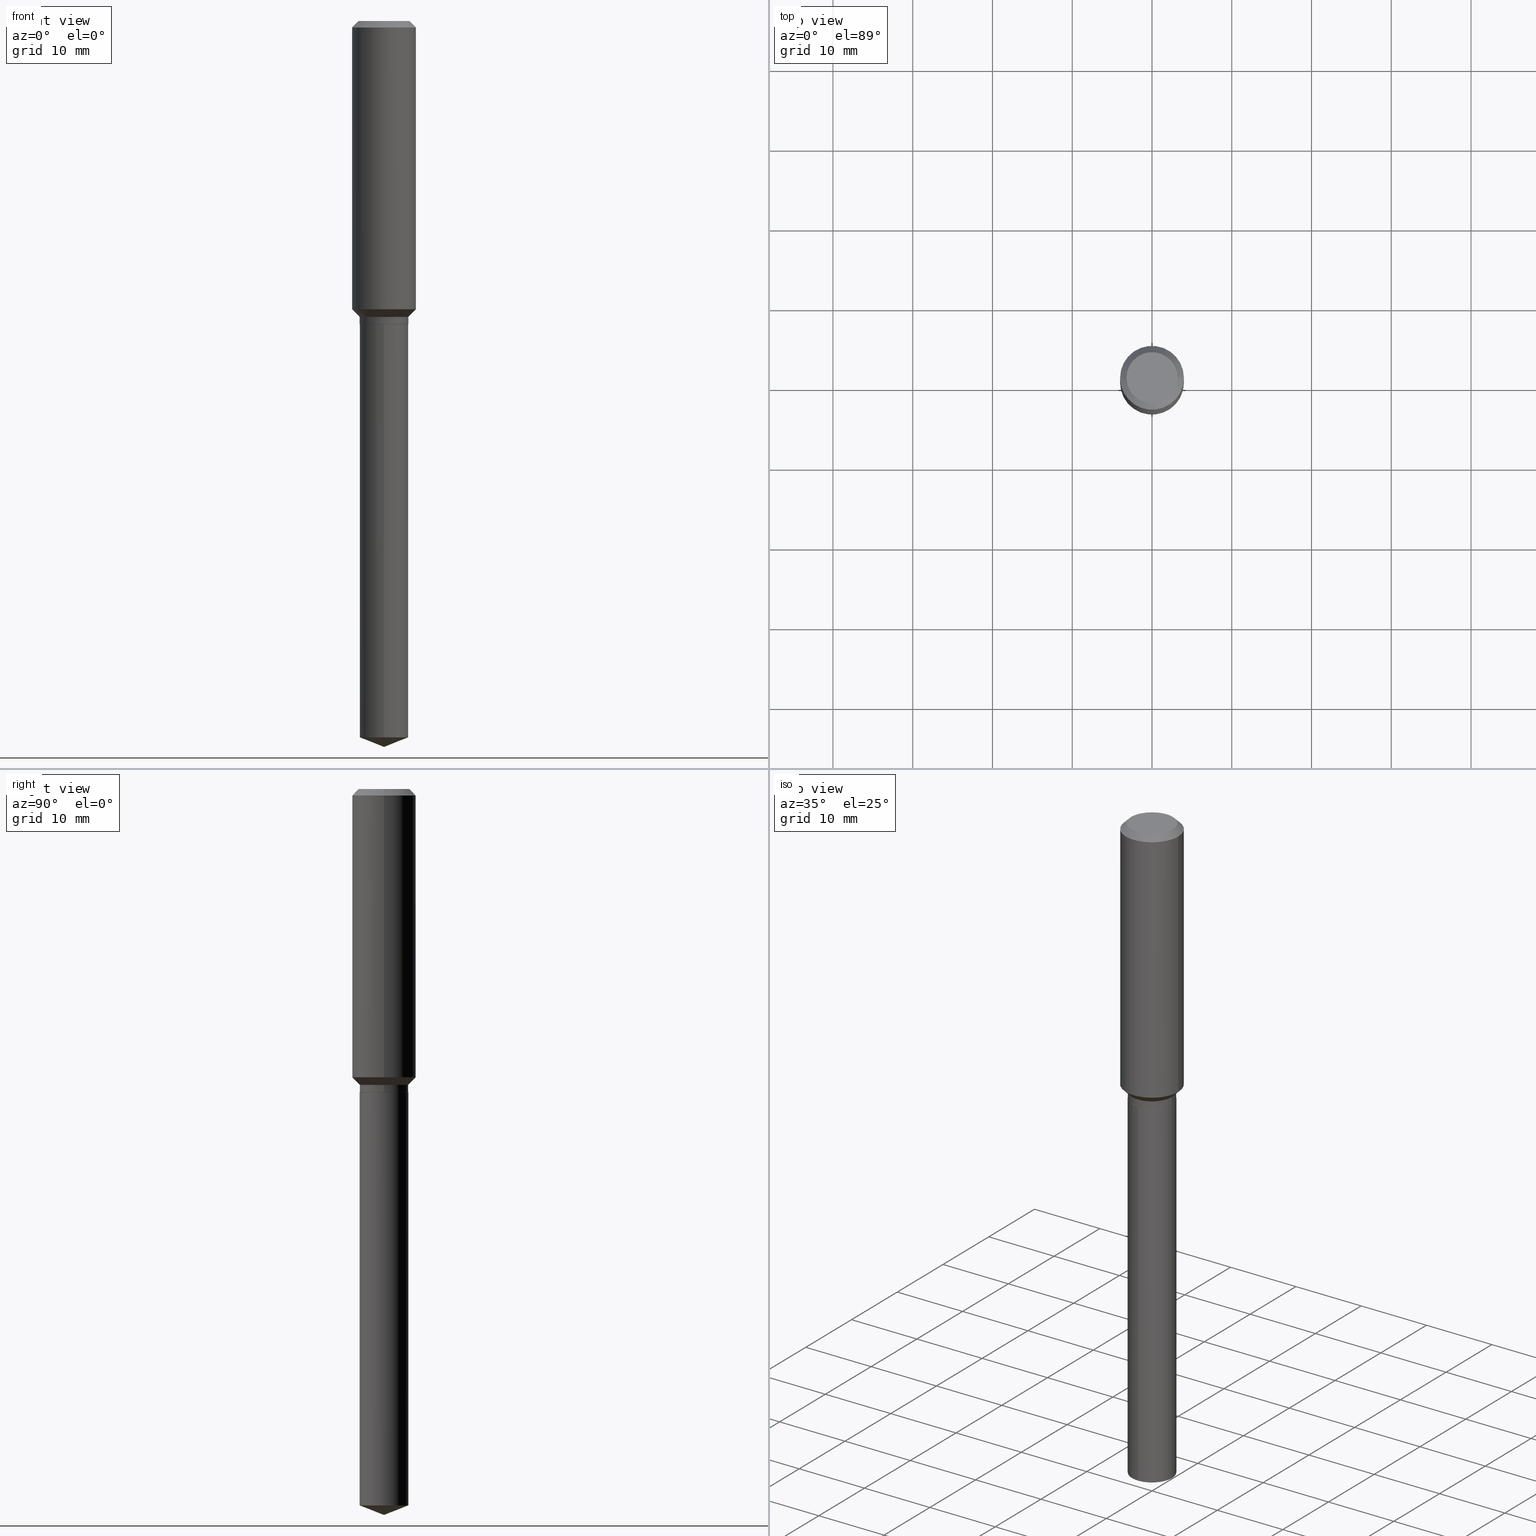
[diagram: canonical four-view strip — front | top / right | iso, engineering-drawing reading convention]
A machine part, canonical four-view strip (front | top / right | iso — engineering-drawing reading convention). The complete STEP part file that produces these views, byte-faithful:
ISO-10303-21;
HEADER;
FILE_DESCRIPTION (( 'STEP AP203' ),
    '1' );
FILE_NAME ('66534.STEP',
    '2024-04-25T00:26:50',
    ( '' ),
    ( '' ),
    'SwSTEP 2.0',
    'SolidWorks 2023',
    '' );
FILE_SCHEMA (( 'CONFIG_CONTROL_DESIGN' ));
ENDSEC;

DATA;
#1 = FACE_OUTER_BOUND ( 'NONE', #41, .T. ) ;
#2 = EDGE_CURVE ( 'NONE', #14, #185, #245, .T. ) ;
#3 = DIRECTION ( 'NONE',  ( 1.000000000000000000, -6.982962677686265922E-15, 0.000000000000000000 ) ) ;
#4 = CARTESIAN_POINT ( 'NONE',  ( 8.761960870846505279E-29, -1.251019797580790401E-14, -3.583000000000000185 ) ) ;
#5 = CARTESIAN_POINT ( 'NONE',  ( 0.000000000000000000, 0.000000000000000000, 0.000000000000000000 ) ) ;
#6 = CARTESIAN_POINT ( 'NONE',  ( 3.659399521575438742E-29, -5.224652675444883351E-15, -1.496400000000000174 ) ) ;
#7 = CIRCLE ( 'NONE', #391, 0.1575000000000001676 ) ;
#8 = PERSON_AND_ORGANIZATION_ROLE ( 'design_supplier' ) ;
#9 = EDGE_LOOP ( 'NONE', ( #446, #57 ) ) ;
#10 = PERSON_AND_ORGANIZATION ( #28, #25 ) ;
#11 = DIRECTION ( 'NONE',  ( -2.445468806185136597E-29, 3.491481338843145583E-15, 1.000000000000000000 ) ) ;
#12 = EDGE_LOOP ( 'NONE', ( #388, #166, #284, #409 ) ) ;
#13 = SECURITY_CLASSIFICATION_LEVEL ( 'unclassified' ) ;
#14 = VERTEX_POINT ( 'NONE', #59 ) ;
#15 = CONICAL_SURFACE ( 'NONE', #439, 0.1575000000000000011, 0.7853981633974450594 ) ;
#16 =( GEOMETRIC_REPRESENTATION_CONTEXT ( 3 ) GLOBAL_UNCERTAINTY_ASSIGNED_CONTEXT ( ( #213 ) ) GLOBAL_UNIT_ASSIGNED_CONTEXT ( ( #305, #257, #65 ) ) REPRESENTATION_CONTEXT ( 'NONE', 'WORKASPACE' ) );
#17 = CIRCLE ( 'NONE', #316, 0.1200999999999999984 ) ;
#18 = ORIENTED_EDGE ( 'NONE', *, *, #454, .T. ) ;
#19 = APPROVAL ( #269, 'UNSPECIFIED' ) ;
#20 = CARTESIAN_POINT ( 'NONE',  ( 7.703226739483226971E-31, -1.099816621735597538E-16, -0.03150000000000019451 ) ) ;
#21 = ORIENTED_EDGE ( 'NONE', *, *, #2, .T. ) ;
#22 = CARTESIAN_POINT ( 'NONE',  ( 7.703226739483226971E-31, -1.099816621735597538E-16, -0.03150000000000019451 ) ) ;
#23 = CARTESIAN_POINT ( 'NONE',  ( -4.719860820353100843E-47, 6.738710358733633822E-33, 1.930043355456229866E-18 ) ) ;
#24 = CIRCLE ( 'NONE', #361, 0.1195999999999999980 ) ;
#25 = ORGANIZATION ( 'UNSPECIFIED', 'UNSPECIFIED', '' ) ;
#26 = CYLINDRICAL_SURFACE ( 'NONE', #152, 0.1575000000000000844 ) ;
#27 = FACE_OUTER_BOUND ( 'NONE', #12, .T. ) ;
#28 = PERSON ( 'UNSPECIFIED', 'UNSPECIFIED', 'UNSPECIFIED', ('UNSPECIFIED'), ('UNSPECIFIED'), ('UNSPECIFIED') ) ;
#29 = CARTESIAN_POINT ( 'NONE',  ( -0.1575000000000000844, 1.119104808822158392E-15, -7.747322767151481189E-30 ) ) ;
#30 = ORIENTED_EDGE ( 'NONE', *, *, #129, .F. ) ;
#31 = DESIGN_CONTEXT ( 'detailed design', #58, 'design' ) ;
#32 = FACE_OUTER_BOUND ( 'NONE', #331, .T. ) ;
#33 = PRODUCT_DEFINITION ( 'UNKNOWN', '', #113, #31 ) ;
#34 = DIRECTION ( 'NONE',  ( -2.445468806185136597E-29, 3.491481338843145583E-15, 1.000000000000000000 ) ) ;
#35 = APPLICATION_PROTOCOL_DEFINITION ( 'international standard', 'config_control_design', 1994, #398 ) ;
#36 = EDGE_CURVE ( 'NONE', #471, #55, #207, .T. ) ;
#37 = CARTESIAN_POINT ( 'NONE',  ( 3.478923923678974203E-29, -4.966981352638257591E-15, -1.422599999999999643 ) ) ;
#38 = CYLINDRICAL_SURFACE ( 'NONE', #244, 0.1200999999999999984 ) ;
#39 = DIRECTION ( 'NONE',  ( 1.000000000000000000, -6.982962677686267499E-15, 0.000000000000000000 ) ) ;
#40 = AXIS2_PLACEMENT_3D ( 'NONE', #223, #180, #332 ) ;
#41 = EDGE_LOOP ( 'NONE', ( #163, #92, #469, #89 ) ) ;
#42 = VECTOR ( 'NONE', #145, 39.37007874015748143 ) ;
#43 = DIRECTION ( 'NONE',  ( -2.445425864037539637E-29, 3.491542834442619495E-15, 1.000000000000000000 ) ) ;
#44 = FACE_OUTER_BOUND ( 'NONE', #197, .T. ) ;
#45 = VERTEX_POINT ( 'NONE', #403 ) ;
#46 = APPROVAL_ROLE ( '' ) ;
#47 = AXIS2_PLACEMENT_3D ( 'NONE', #177, #140, #135 ) ;
#48 = ORIENTED_EDGE ( 'NONE', *, *, #454, .F. ) ;
#49 = CIRCLE ( 'NONE', #175, 0.1200999999999999984 ) ;
#50 = ORIENTED_EDGE ( 'NONE', *, *, #187, .F. ) ;
#51 = VERTEX_POINT ( 'NONE', #433 ) ;
#52 = COORDINATED_UNIVERSAL_TIME_OFFSET ( 5, 0, .BEHIND. ) ;
#53 = VERTEX_POINT ( 'NONE', #325 ) ;
#54 = APPROVAL_STATUS ( 'not_yet_approved' ) ;
#55 = VERTEX_POINT ( 'NONE', #94 ) ;
#56 = VECTOR ( 'NONE', #61, 39.37007874015748143 ) ;
#57 = ORIENTED_EDGE ( 'NONE', *, *, #196, .F. ) ;
#58 = APPLICATION_CONTEXT ( 'configuration controlled 3d designs of mechanical parts and assemblies' ) ;
#59 = CARTESIAN_POINT ( 'NONE',  ( 0.1200999999999999984, -6.061560752365582927E-15, -1.495900000000000230 ) ) ;
#60 = DIRECTION ( 'NONE',  ( -2.445468806185136597E-29, 3.491481338843145583E-15, 1.000000000000000000 ) ) ;
#61 = DIRECTION ( 'NONE',  ( -2.445425864037539356E-29, 3.491542834442619101E-15, 1.000000000000000000 ) ) ;
#62 = LINE ( 'NONE', #29, #143 ) ;
#63 = FACE_OUTER_BOUND ( 'NONE', #317, .T. ) ;
#64 = CC_DESIGN_PERSON_AND_ORGANIZATION_ASSIGNMENT ( #426, #122, ( #113 ) ) ;
#65 =( NAMED_UNIT ( * ) SI_UNIT ( $, .STERADIAN. ) SOLID_ANGLE_UNIT ( ) );
#66 = VECTOR ( 'NONE', #301, 39.37007874015748143 ) ;
#67 = LOCAL_TIME ( 20, 26, 50.00000000000000000, #282 ) ;
#68 = DIRECTION ( 'NONE',  ( -2.445425864037539637E-29, 3.491542834442619495E-15, 1.000000000000000000 ) ) ;
#69 = DIRECTION ( 'NONE',  ( 0.000000000000000000, 0.000000000000000000, 1.000000000000000000 ) ) ;
#70 = DIRECTION ( 'NONE',  ( -2.445468806185136597E-29, 3.491481338843145583E-15, 1.000000000000000000 ) ) ;
#71 = ORIENTED_EDGE ( 'NONE', *, *, #358, .T. ) ;
#72 = EDGE_CURVE ( 'NONE', #319, #432, #260, .T. ) ;
#73 = DIRECTION ( 'NONE',  ( 1.000000000000000000, -6.982962677686267499E-15, 4.876176775795936353E-29 ) ) ;
#74 = CARTESIAN_POINT ( 'NONE',  ( -0.1200999999999999984, -4.306873019095346106E-15, -1.459999999999999742 ) ) ;
#75 = DIRECTION ( 'NONE',  ( -2.445468806185136597E-29, 3.491481338843145583E-15, 1.000000000000000000 ) ) ;
#76 = AXIS2_PLACEMENT_3D ( 'NONE', #458, #220, #376 ) ;
#77 = DIRECTION ( 'NONE',  ( -2.445468806185136597E-29, 3.491481338843145583E-15, 1.000000000000000000 ) ) ;
#78 = DIRECTION ( 'NONE',  ( -0.7071067811866199593, 7.493145998870616062E-15, 0.7071067811864750752 ) ) ;
#79 = DATE_AND_TIME ( #124, #466 ) ;
#80 = DIRECTION ( 'NONE',  ( -2.445468806185136597E-29, 3.491481338843145583E-15, 1.000000000000000000 ) ) ;
#81 = ADVANCED_FACE ( 'NONE', ( #63 ), #253, .T. ) ;
#82 = ORIENTED_EDGE ( 'NONE', *, *, #134, .T. ) ;
#83 = CIRCLE ( 'NONE', #120, 0.1575000000000000011 ) ;
#84 = ORIENTED_EDGE ( 'NONE', *, *, #400, .F. ) ;
#85 = APPROVAL_DATE_TIME ( #348, #335 ) ;
#86 = CARTESIAN_POINT ( 'NONE',  ( -8.386538175900839049E-16, -0.1201000000000052303, -1.496399999999999730 ) ) ;
#87 = ORIENTED_EDGE ( 'NONE', *, *, #445, .T. ) ;
#88 = COORDINATED_UNIVERSAL_TIME_OFFSET ( 5, 0, .BEHIND. ) ;
#89 = ORIENTED_EDGE ( 'NONE', *, *, #445, .F. ) ;
#90 = VECTOR ( 'NONE', #291, 39.37007874015748143 ) ;
#91 = ORIENTED_EDGE ( 'NONE', *, *, #358, .F. ) ;
#92 = ORIENTED_EDGE ( 'NONE', *, *, #196, .T. ) ;
#93 = ORIENTED_EDGE ( 'NONE', *, *, #2, .F. ) ;
#94 = CARTESIAN_POINT ( 'NONE',  ( -0.1575000000000001676, -3.847876543816099199E-15, -1.422599999999999643 ) ) ;
#95 = CARTESIAN_POINT ( 'NONE',  ( 0.1575000000000000844, -1.099816621735587677E-15, 7.679978421878603638E-30 ) ) ;
#96 = CIRCLE ( 'NONE', #415, 0.1260000000000000009 ) ;
#97 = DIRECTION ( 'NONE',  ( -6.982962677686265922E-15, -1.000000000000000000, 3.498627837350062993E-15 ) ) ;
#98 = EDGE_CURVE ( 'NONE', #464, #174, #247, .T. ) ;
#99 = CARTESIAN_POINT ( 'NONE',  ( 0.1195999999999999980, -6.059815011696161424E-15, -1.496400000000000174 ) ) ;
#100 = DIRECTION ( 'NONE',  ( 1.000000000000000000, -6.982962677686265922E-15, 0.000000000000000000 ) ) ;
#101 = DIRECTION ( 'NONE',  ( -1.000000000000000000, 6.982962677686265922E-15, -4.876176775795935793E-29 ) ) ;
#102 = AXIS2_PLACEMENT_3D ( 'NONE', #144, #304, #265 ) ;
#103 = CARTESIAN_POINT ( 'NONE',  ( 3.570384457030299274E-29, -5.097562754710991580E-15, -1.459999999999999742 ) ) ;
#104 = ORIENTED_EDGE ( 'NONE', *, *, #72, .T. ) ;
#105 = CARTESIAN_POINT ( 'NONE',  ( 3.570384457030299274E-29, -5.097562754710991580E-15, -1.459999999999999742 ) ) ;
#106 = DIRECTION ( 'NONE',  ( 1.000000000000000000, -6.982962677686269866E-15, 0.000000000000000000 ) ) ;
#107 = MECHANICAL_CONTEXT ( 'NONE', #398, 'mechanical' ) ;
#108 = LINE ( 'NONE', #307, #66 ) ;
#109 = PERSON_AND_ORGANIZATION ( #28, #25 ) ;
#110 = CARTESIAN_POINT ( 'NONE',  ( -0.1195999999999999980, -4.374843563475804036E-15, -1.496400000000000174 ) ) ;
#111 = VECTOR ( 'NONE', #141, 39.37007874015748143 ) ;
#112 = ADVANCED_FACE ( 'NONE', ( #397 ), #194, .T. ) ;
#113 = PRODUCT_DEFINITION_FORMATION_WITH_SPECIFIED_SOURCE ( 'ANY', '', #237, .NOT_KNOWN. ) ;
#114 = LINE ( 'NONE', #110, #385 ) ;
#115 = DIRECTION ( 'NONE',  ( 1.000000000000000000, -6.982962677686265922E-15, 0.000000000000000000 ) ) ;
#116 = ORIENTED_EDGE ( 'NONE', *, *, #129, .T. ) ;
#117 = ADVANCED_FACE ( 'NONE', ( #327 ), #202, .T. ) ;
#118 = VECTOR ( 'NONE', #463, 39.37007874015748143 ) ;
#119 = ORIENTED_EDGE ( 'NONE', *, *, #98, .T. ) ;
#120 = AXIS2_PLACEMENT_3D ( 'NONE', #267, #75, #452 ) ;
#121 = CONICAL_SURFACE ( 'NONE', #303, 0.1575000000000000011, 0.7853981633974450594 ) ;
#122 = PERSON_AND_ORGANIZATION_ROLE ( 'creator' ) ;
#123 = VERTEX_POINT ( 'NONE', #442 ) ;
#124 = CALENDAR_DATE ( 2024, 24, 4 ) ;
#125 = ORIENTED_EDGE ( 'NONE', *, *, #167, .F. ) ;
#126 = ORIENTED_EDGE ( 'NONE', *, *, #186, .F. ) ;
#127 = DIRECTION ( 'NONE',  ( 1.000000000000000000, -6.982962677686265922E-15, 0.000000000000000000 ) ) ;
#128 = ORIENTED_EDGE ( 'NONE', *, *, #72, .F. ) ;
#129 = EDGE_CURVE ( 'NONE', #123, #51, #49, .T. ) ;
#130 = AXIS2_PLACEMENT_3D ( 'NONE', #444, #359, #362 ) ;
#131 = DIRECTION ( 'NONE',  ( 2.445468806185136597E-29, -3.491481338843145583E-15, -1.000000000000000000 ) ) ;
#132 = PLANE ( 'NONE',  #225 ) ;
#133 = EDGE_CURVE ( 'NONE', #467, #14, #473, .T. ) ;
#134 = EDGE_CURVE ( 'NONE', #51, #123, #315, .T. ) ;
#135 = DIRECTION ( 'NONE',  ( -6.982962677686265922E-15, -1.000000000000000000, 4.549288915344318469E-15 ) ) ;
#136 = ADVANCED_FACE ( 'NONE', ( #258 ), #26, .T. ) ;
#137 = AXIS2_PLACEMENT_3D ( 'NONE', #172, #360, #252 ) ;
#138 = CARTESIAN_POINT ( 'NONE',  ( 0.1575000000000000011, -1.209798283909146741E-15, -0.03150000000000019451 ) ) ;
#139 = ORIENTED_EDGE ( 'NONE', *, *, #167, .T. ) ;
#140 = DIRECTION ( 'NONE',  ( -2.445425864037539637E-29, 3.491542834442619495E-15, 1.000000000000000000 ) ) ;
#141 = DIRECTION ( 'NONE',  ( -2.445468806185136877E-29, 3.491481338843145188E-15, 1.000000000000000000 ) ) ;
#142 = CARTESIAN_POINT ( 'NONE',  ( 3.658176787172346501E-29, -5.222906934775461847E-15, -1.495900000000000230 ) ) ;
#143 = VECTOR ( 'NONE', #173, 39.37007874015748143 ) ;
#144 = CARTESIAN_POINT ( 'NONE',  ( 3.659399521575438742E-29, -5.224652675444883351E-15, -1.496400000000000174 ) ) ;
#145 = DIRECTION ( 'NONE',  ( 0.7071067811865491270, -2.468850131082274021E-15, 0.7071067811865459074 ) ) ;
#146 = DIRECTION ( 'NONE',  ( 1.000000000000000000, -6.982962677686265922E-15, 0.000000000000000000 ) ) ;
#147 = DIRECTION ( 'NONE',  ( -6.982962677686265922E-15, -1.000000000000000000, 4.549288915344318469E-15 ) ) ;
#148 = EDGE_LOOP ( 'NONE', ( #82, #116 ) ) ;
#149 = ADVANCED_FACE ( 'NONE', ( #32 ), #132, .F. ) ;
#150 = DATE_AND_TIME ( #192, #67 ) ;
#151 = LINE ( 'NONE', #339, #278 ) ;
#152 = AXIS2_PLACEMENT_3D ( 'NONE', #170, #168, #474 ) ;
#153 = CALENDAR_DATE ( 2024, 24, 4 ) ;
#154 = ORIENTED_EDGE ( 'NONE', *, *, #414, .T. ) ;
#155 = ORIENTED_EDGE ( 'NONE', *, *, #274, .F. ) ;
#156 = SHAPE_DEFINITION_REPRESENTATION ( #355, #437 ) ;
#157 = ORIENTED_EDGE ( 'NONE', *, *, #341, .T. ) ;
#158 = ADVANCED_FACE ( 'NONE', ( #27 ), #15, .T. ) ;
#159 = PERSON_AND_ORGANIZATION ( #28, #25 ) ;
#160 = CARTESIAN_POINT ( 'NONE',  ( 3.570384457030299274E-29, -5.097562754710991580E-15, -1.459999999999999742 ) ) ;
#161 = ORIENTED_EDGE ( 'NONE', *, *, #318, .T. ) ;
#162 = AXIS2_PLACEMENT_3D ( 'NONE', #300, #69, #375 ) ;
#163 = ORIENTED_EDGE ( 'NONE', *, *, #350, .F. ) ;
#164 = ADVANCED_FACE ( 'NONE', ( #210 ), #401, .F. ) ;
#165 = EDGE_LOOP ( 'NONE', ( #236, #423, #421, #155 ) ) ;
#166 = ORIENTED_EDGE ( 'NONE', *, *, #187, .T. ) ;
#167 = EDGE_CURVE ( 'NONE', #55, #249, #62, .T. ) ;
#168 = DIRECTION ( 'NONE',  ( -2.445468806185136597E-29, 3.491481338843145583E-15, 1.000000000000000000 ) ) ;
#169 = CONICAL_SURFACE ( 'NONE', #372, 0.1200999999999999984, 0.7853981633974506105 ) ;
#170 = CARTESIAN_POINT ( 'NONE',  ( 0.000000000000000000, 0.000000000000000000, 0.000000000000000000 ) ) ;
#171 = DIRECTION ( 'NONE',  ( 6.982962677686265922E-15, 1.000000000000000000, -3.491542834442619101E-15 ) ) ;
#172 = CARTESIAN_POINT ( 'NONE',  ( -9.439721640706201686E-47, 1.347742071746726764E-32, 3.860086710912459732E-18 ) ) ;
#173 = DIRECTION ( 'NONE',  ( -2.445468806185136877E-29, 3.491481338843145188E-15, 1.000000000000000000 ) ) ;
#174 = VERTEX_POINT ( 'NONE', #138 ) ;
#175 = AXIS2_PLACEMENT_3D ( 'NONE', #405, #68, #364 ) ;
#176 = CC_DESIGN_SECURITY_CLASSIFICATION ( #235, ( #113 ) ) ;
#177 = CARTESIAN_POINT ( 'NONE',  ( 8.646335337767556981E-29, -1.234492578243756992E-14, -3.535691351878645250 ) ) ;
#178 = CC_DESIGN_DATE_AND_TIME_ASSIGNMENT ( #150, #424, ( #33 ) ) ;
#179 = EDGE_CURVE ( 'NONE', #45, #471, #296, .T. ) ;
#180 = DIRECTION ( 'NONE',  ( -2.445468806185136597E-29, 3.491481338843145583E-15, 1.000000000000000000 ) ) ;
#181 = LINE ( 'NONE', #455, #343 ) ;
#182 = LINE ( 'NONE', #229, #42 ) ;
#183 = CIRCLE ( 'NONE', #472, 0.1200999999999999984 ) ;
#184 = CARTESIAN_POINT ( 'NONE',  ( 3.570384457030299274E-29, -5.097562754710991580E-15, -1.459999999999999742 ) ) ;
#185 = VERTEX_POINT ( 'NONE', #273 ) ;
#186 = EDGE_CURVE ( 'NONE', #464, #55, #7, .T. ) ;
#187 = EDGE_CURVE ( 'NONE', #387, #174, #337, .T. ) ;
#188 = PERSON_AND_ORGANIZATION_ROLE ( 'design_owner' ) ;
#189 = CARTESIAN_POINT ( 'NONE',  ( -0.1575000000000000011, -1.419376698583750132E-15, -0.03150000000000019451 ) ) ;
#190 = DIRECTION ( 'NONE',  ( -2.445425864037539637E-29, 3.491542834442619495E-15, 1.000000000000000000 ) ) ;
#191 = ORIENTED_EDGE ( 'NONE', *, *, #241, .T. ) ;
#192 = CALENDAR_DATE ( 2024, 24, 4 ) ;
#193 = CLOSED_SHELL ( 'NONE', ( #289, #158, #136, #369, #434, #81, #256, #217, #394, #149, #420, #243 ) ) ;
#194 = CONICAL_SURFACE ( 'NONE', #336, 99.94676754583829847, 1.195550537616113740 ) ;
#195 = ORIENTED_EDGE ( 'NONE', *, *, #302, .F. ) ;
#196 = EDGE_CURVE ( 'NONE', #427, #467, #250, .T. ) ;
#197 = EDGE_LOOP ( 'NONE', ( #125, #456, #119, #195 ) ) ;
#198 = APPROVAL_DATE_TIME ( #280, #344 ) ;
#199 = EDGE_LOOP ( 'NONE', ( #275, #425, #279 ) ) ;
#200 = DATE_TIME_ROLE ( 'classification_date' ) ;
#201 = DIRECTION ( 'NONE',  ( -2.445468806185136597E-29, 3.491481338843145583E-15, 1.000000000000000000 ) ) ;
#202 = CONICAL_SURFACE ( 'NONE', #479, 99.94676754583829847, 1.195550537616113740 ) ;
#203 = ORIENTED_EDGE ( 'NONE', *, *, #179, .T. ) ;
#204 = APPROVAL_PERSON_ORGANIZATION ( #383, #344, #46 ) ;
#205 = APPROVAL_DATE_TIME ( #79, #19 ) ;
#206 = ORIENTED_EDGE ( 'NONE', *, *, #186, .T. ) ;
#207 = LINE ( 'NONE', #313, #118 ) ;
#208 = AXIS2_PLACEMENT_3D ( 'NONE', #20, #201, #127 ) ;
#209 = FACE_OUTER_BOUND ( 'NONE', #9, .T. ) ;
#210 = FACE_OUTER_BOUND ( 'NONE', #148, .T. ) ;
#211 = ORIENTED_EDGE ( 'NONE', *, *, #222, .F. ) ;
#212 = CARTESIAN_POINT ( 'NONE',  ( 0.1260000000000000009, -1.027466422270894443E-15, 3.860086710919128072E-18 ) ) ;
#213 = UNCERTAINTY_MEASURE_WITH_UNIT (LENGTH_MEASURE( 1.000000000000000082E-05 ), #305, 'distance_accuracy_value', 'NONE');
#214 = DIRECTION ( 'NONE',  ( -2.445425864037539637E-29, 3.491542834442619495E-15, 1.000000000000000000 ) ) ;
#215 = CC_DESIGN_PERSON_AND_ORGANIZATION_ASSIGNMENT ( #10, #8, ( #113 ) ) ;
#216 = CIRCLE ( 'NONE', #76, 0.1575000000000001676 ) ;
#217 = ADVANCED_FACE ( 'NONE', ( #44 ), #378, .T. ) ;
#218 =( LENGTH_UNIT ( ) NAMED_UNIT ( * ) SI_UNIT ( $, .METRE. ) );
#219 = DIRECTION ( 'NONE',  ( 1.000000000000000000, -6.982962677686269866E-15, 0.000000000000000000 ) ) ;
#220 = DIRECTION ( 'NONE',  ( -2.445468806185136597E-29, 3.491481338843145583E-15, 1.000000000000000000 ) ) ;
#221 = LENGTH_MEASURE_WITH_UNIT ( LENGTH_MEASURE( 0.02539999999999999897 ), #218 );
#222 = EDGE_CURVE ( 'NONE', #14, #45, #226, .T. ) ;
#223 = CARTESIAN_POINT ( 'NONE',  ( 3.658176787172346501E-29, -5.222906934775461847E-15, -1.495900000000000230 ) ) ;
#224 = VECTOR ( 'NONE', #395, 39.37007874015748143 ) ;
#225 = AXIS2_PLACEMENT_3D ( 'NONE', #23, #435, #101 ) ;
#226 = CIRCLE ( 'NONE', #40, 0.1200999999999999984 ) ;
#227 = AXIS2_PLACEMENT_3D ( 'NONE', #105, #412, #3 ) ;
#228 = CARTESIAN_POINT ( 'NONE',  ( -8.386538175900343053E-16, -0.1201000000000123774, -3.535691351878644362 ) ) ;
#229 = CARTESIAN_POINT ( 'NONE',  ( 0.1200999999999999984, -5.936216572301112660E-15, -1.459999999999999742 ) ) ;
#230 = DIRECTION ( 'NONE',  ( -2.445468806185136597E-29, 3.491481338843145583E-15, 1.000000000000000000 ) ) ;
#231 = PERSON_AND_ORGANIZATION_ROLE ( 'creator' ) ;
#232 = EDGE_CURVE ( 'NONE', #471, #185, #286, .T. ) ;
#233 = PERSON_AND_ORGANIZATION ( #28, #25 ) ;
#234 = VECTOR ( 'NONE', #349, 39.37007874015748143 ) ;
#235 = SECURITY_CLASSIFICATION ( '', '', #13 ) ;
#236 = ORIENTED_EDGE ( 'NONE', *, *, #36, .F. ) ;
#237 = PRODUCT ( '66534', '66534', '', ( #107 ) ) ;
#238 = ORIENTED_EDGE ( 'NONE', *, *, #453, .T. ) ;
#239 = DIMENSIONAL_EXPONENTS ( 1.000000000000000000, 0.000000000000000000, 0.000000000000000000, 0.000000000000000000, 0.000000000000000000, 0.000000000000000000, 0.000000000000000000 ) ;
#240 = EDGE_LOOP ( 'NONE', ( #299, #157, #71, #30 ) ) ;
#241 = EDGE_CURVE ( 'NONE', #326, #432, #108, .T. ) ;
#242 = ORIENTED_EDGE ( 'NONE', *, *, #302, .T. ) ;
#243 = ADVANCED_FACE ( 'NONE', ( #1 ), #308, .T. ) ;
#244 = AXIS2_PLACEMENT_3D ( 'NONE', #340, #443, #410 ) ;
#245 = LINE ( 'NONE', #287, #224 ) ;
#246 = EDGE_LOOP ( 'NONE', ( #351, #191, #128 ) ) ;
#247 = LINE ( 'NONE', #95, #90 ) ;
#248 = CARTESIAN_POINT ( 'NONE',  ( 7.703226739483226971E-31, -1.099816621735597538E-16, -0.03150000000000019451 ) ) ;
#249 = VERTEX_POINT ( 'NONE', #189 ) ;
#250 = CIRCLE ( 'NONE', #294, 0.1195999999999999980 ) ;
#251 = AXIS2_PLACEMENT_3D ( 'NONE', #5, #77, #407 ) ;
#252 = DIRECTION ( 'NONE',  ( 1.000000000000000000, -6.982962677686265922E-15, 4.876281427513067258E-29 ) ) ;
#253 = CYLINDRICAL_SURFACE ( 'NONE', #384, 0.1200999999999999984 ) ;
#254 = DIRECTION ( 'NONE',  ( -2.438088387897960049E-29, 3.491481338843145188E-15, 1.000000000000000000 ) ) ;
#255 = CARTESIAN_POINT ( 'NONE',  ( -0.1200999999999999984, 8.533618256478803120E-16, -5.907641043396141944E-30 ) ) ;
#256 = ADVANCED_FACE ( 'NONE', ( #413 ), #322, .T. ) ;
#257 =( NAMED_UNIT ( * ) PLANE_ANGLE_UNIT ( ) SI_UNIT ( $, .RADIAN. ) );
#258 = FACE_OUTER_BOUND ( 'NONE', #430, .T. ) ;
#259 = PRODUCT_RELATED_PRODUCT_CATEGORY ( 'detail', '', ( #237 ) ) ;
#260 = CIRCLE ( 'NONE', #47, 0.1200999999999999984 ) ;
#261 = CONICAL_SURFACE ( 'NONE', #102, 0.1195999999999999980, 0.7853981633975507526 ) ;
#262 = CARTESIAN_POINT ( 'NONE',  ( 0.1195999999999999980, -6.059815011696161424E-15, -1.496400000000000174 ) ) ;
#263 = DIRECTION ( 'NONE',  ( -2.445468806185136597E-29, 3.491481338843145583E-15, 1.000000000000000000 ) ) ;
#264 = EDGE_LOOP ( 'NONE', ( #450, #203, #48, #93 ) ) ;
#265 = DIRECTION ( 'NONE',  ( 1.000000000000000000, -6.982962677686269866E-15, 0.000000000000000000 ) ) ;
#266 = ADVANCED_FACE ( 'NONE', ( #306 ), #408, .T. ) ;
#267 = CARTESIAN_POINT ( 'NONE',  ( 7.703226739483226971E-31, -1.099816621735597538E-16, -0.03150000000000019451 ) ) ;
#268 = VECTOR ( 'NONE', #328, 39.37007874015748143 ) ;
#269 = APPROVAL_STATUS ( 'not_yet_approved' ) ;
#270 = CIRCLE ( 'NONE', #137, 0.1260000000000000009 ) ;
#271 = DIRECTION ( 'NONE',  ( -0.7071067811865452413, 2.468850131082233000E-15, -0.7071067811865497932 ) ) ;
#272 = PERSON_AND_ORGANIZATION ( #28, #25 ) ;
#273 = CARTESIAN_POINT ( 'NONE',  ( 0.1200999999999999984, -5.936216572301112660E-15, -1.459999999999999742 ) ) ;
#274 = EDGE_CURVE ( 'NONE', #55, #464, #216, .T. ) ;
#275 = ORIENTED_EDGE ( 'NONE', *, *, #241, .F. ) ;
#276 = PERSON_AND_ORGANIZATION_ROLE ( 'classification_officer' ) ;
#277 = DIRECTION ( 'NONE',  ( 1.000000000000000000, -6.982962677686269866E-15, 0.000000000000000000 ) ) ;
#278 = VECTOR ( 'NONE', #271, 39.37007874015748143 ) ;
#279 = ORIENTED_EDGE ( 'NONE', *, *, #341, .F. ) ;
#280 = DATE_AND_TIME ( #312, #480 ) ;
#281 = EDGE_CURVE ( 'NONE', #326, #319, #181, .T. ) ;
#282 = COORDINATED_UNIVERSAL_TIME_OFFSET ( 5, 0, .BEHIND. ) ;
#283 = CC_DESIGN_PERSON_AND_ORGANIZATION_ASSIGNMENT ( #333, #188, ( #237 ) ) ;
#284 = ORIENTED_EDGE ( 'NONE', *, *, #366, .T. ) ;
#285 = CLOSED_SHELL ( 'NONE', ( #266, #117, #112, #482, #164 ) ) ;
#286 = CIRCLE ( 'NONE', #379, 0.1200999999999999984 ) ;
#287 = CARTESIAN_POINT ( 'NONE',  ( 0.1200999999999999984, -8.386538175901206856E-16, 5.856288307730919352E-30 ) ) ;
#288 = DIRECTION ( 'NONE',  ( 2.445425864037539637E-29, -3.491542834442619101E-15, -1.000000000000000000 ) ) ;
#289 = ADVANCED_FACE ( 'NONE', ( #488 ), #261, .T. ) ;
#290 = MANIFOLD_SOLID_BREP ( 'Body-Move/Copy2[2]', #193 ) ;
#291 = DIRECTION ( 'NONE',  ( -2.445468806185136877E-29, 3.491481338843145188E-15, 1.000000000000000000 ) ) ;
#292 = EDGE_LOOP ( 'NONE', ( #402, #352, #211, #354 ) ) ;
#293 = DIRECTION ( 'NONE',  ( 1.000000000000000000, -6.982962677686267499E-15, 4.876176775795936353E-29 ) ) ;
#294 = AXIS2_PLACEMENT_3D ( 'NONE', #419, #70, #219 ) ;
#295 = CC_DESIGN_APPROVAL ( #344, ( #235 ) ) ;
#296 = LINE ( 'NONE', #255, #111 ) ;
#297 = DIRECTION ( 'NONE',  ( -2.445468806185136597E-29, 3.491481338843145583E-15, 1.000000000000000000 ) ) ;
#298 = DIRECTION ( 'NONE',  ( -2.445425864037539637E-29, 3.491542834442619495E-15, 1.000000000000000000 ) ) ;
#299 = ORIENTED_EDGE ( 'NONE', *, *, #414, .F. ) ;
#300 = CARTESIAN_POINT ( 'NONE',  ( 0.000000000000000000, 0.000000000000000000, 0.000000000000000000 ) ) ;
#301 = DIRECTION ( 'NONE',  ( 6.611014441532053178E-15, 0.9304175679820250178, 0.3665012267242958588 ) ) ;
#302 = EDGE_CURVE ( 'NONE', #249, #174, #83, .T. ) ;
#303 = AXIS2_PLACEMENT_3D ( 'NONE', #22, #436, #396 ) ;
#304 = DIRECTION ( 'NONE',  ( -2.445468806185136597E-29, 3.491481338843145583E-15, 1.000000000000000000 ) ) ;
#305 =( CONVERSION_BASED_UNIT ( 'INCH', #221 ) LENGTH_UNIT ( ) NAMED_UNIT ( #239 ) );
#306 = FACE_OUTER_BOUND ( 'NONE', #390, .T. ) ;
#307 = CARTESIAN_POINT ( 'NONE',  ( 8.762090515050494278E-29, -1.251001393177779982E-14, -3.583000000000000185 ) ) ;
#308 = CONICAL_SURFACE ( 'NONE', #438, 0.1195999999999999980, 0.7853981633975507526 ) ;
#309 = DATE_AND_TIME ( #153, #346 ) ;
#310 = CC_DESIGN_APPROVAL ( #19, ( #33 ) ) ;
#311 = DIRECTION ( 'NONE',  ( -2.445468806185136597E-29, 3.491481338843145583E-15, 1.000000000000000000 ) ) ;
#312 = CALENDAR_DATE ( 2024, 24, 4 ) ;
#313 = CARTESIAN_POINT ( 'NONE',  ( -0.1200999999999999984, -4.244200929063111367E-15, -1.459999999999999742 ) ) ;
#314 = ORIENTED_EDGE ( 'NONE', *, *, #134, .F. ) ;
#315 = CIRCLE ( 'NONE', #130, 0.1200999999999999984 ) ;
#316 = AXIS2_PLACEMENT_3D ( 'NONE', #142, #297, #100 ) ;
#317 = EDGE_LOOP ( 'NONE', ( #393, #87, #21, #357 ) ) ;
#318 = EDGE_CURVE ( 'NONE', #53, #249, #151, .T. ) ;
#319 = VERTEX_POINT ( 'NONE', #228 ) ;
#320 = EDGE_LOOP ( 'NONE', ( #18, #461, #126, #468 ) ) ;
#321 = ORIENTED_EDGE ( 'NONE', *, *, #366, .F. ) ;
#322 = CONICAL_SURFACE ( 'NONE', #371, 0.1200999999999999984, 0.7853981633974506105 ) ;
#323 = CARTESIAN_POINT ( 'NONE',  ( -8.751458369089940116E-28, 1.249522103628457051E-13, 35.78707874015748303 ) ) ;
#324 = CARTESIAN_POINT ( 'NONE',  ( 8.533618256479168955E-16, 0.1200999999999947804, -1.496400000000000841 ) ) ;
#325 = CARTESIAN_POINT ( 'NONE',  ( -0.1260000000000000009, 9.348441284752484904E-16, 3.860086710906114178E-18 ) ) ;
#326 = VERTEX_POINT ( 'NONE', #4 ) ;
#327 = FACE_OUTER_BOUND ( 'NONE', #246, .T. ) ;
#328 = DIRECTION ( 'NONE',  ( 0.7071067811866199593, -2.468850131083015945E-15, 0.7071067811864750752 ) ) ;
#329 = AXIS2_PLACEMENT_3D ( 'NONE', #478, #254, #487 ) ;
#330 = CC_DESIGN_DATE_AND_TIME_ASSIGNMENT ( #309, #200, ( #235 ) ) ;
#331 = EDGE_LOOP ( 'NONE', ( #377, #238 ) ) ;
#332 = DIRECTION ( 'NONE',  ( 1.000000000000000000, -6.982962677686265922E-15, 0.000000000000000000 ) ) ;
#333 = PERSON_AND_ORGANIZATION ( #28, #25 ) ;
#334 = DIRECTION ( 'NONE',  ( -6.497071151882105637E-15, -0.9304175679820225753, 0.3665012267243024091 ) ) ;
#335 = APPROVAL ( #54, 'UNSPECIFIED' ) ;
#336 = AXIS2_PLACEMENT_3D ( 'NONE', #323, #214, #97 ) ;
#337 = LINE ( 'NONE', #411, #449 ) ;
#338 = CARTESIAN_POINT ( 'NONE',  ( -0.1195999999999999980, -4.372194336301692835E-15, -1.496400000000000174 ) ) ;
#339 = CARTESIAN_POINT ( 'NONE',  ( -0.1575000000000000011, 9.898349595620272334E-16, -0.03150000000000019451 ) ) ;
#340 = CARTESIAN_POINT ( 'NONE',  ( 3.659399521575438742E-29, -5.224652675444883351E-15, -1.496400000000000174 ) ) ;
#341 = EDGE_CURVE ( 'NONE', #432, #319, #183, .T. ) ;
#342 = DIRECTION ( 'NONE',  ( 0.7071067811865452413, -7.319954787623248157E-15, -0.7071067811865497932 ) ) ;
#343 = VECTOR ( 'NONE', #334, 39.37007874015748854 ) ;
#344 = APPROVAL ( #386, 'UNSPECIFIED' ) ;
#345 = APPROVAL_ROLE ( '' ) ;
#346 = LOCAL_TIME ( 20, 26, 50.00000000000000000, #88 ) ;
#347 = EDGE_LOOP ( 'NONE', ( #50, #84, #161, #242 ) ) ;
#348 = DATE_AND_TIME ( #418, #440 ) ;
#349 = DIRECTION ( 'NONE',  ( -2.445425864037539356E-29, 3.491542834442619101E-15, 1.000000000000000000 ) ) ;
#350 = EDGE_CURVE ( 'NONE', #427, #45, #114, .T. ) ;
#351 = ORIENTED_EDGE ( 'NONE', *, *, #281, .F. ) ;
#352 = ORIENTED_EDGE ( 'NONE', *, *, #350, .T. ) ;
#353 = COORDINATED_UNIVERSAL_TIME_OFFSET ( 5, 0, .BEHIND. ) ;
#354 = ORIENTED_EDGE ( 'NONE', *, *, #133, .F. ) ;
#355 = PRODUCT_DEFINITION_SHAPE ( 'NONE', 'NONE',  #33 ) ;
#356 = CARTESIAN_POINT ( 'NONE',  ( 3.659399521575438742E-29, -5.224652675444883351E-15, -1.496400000000000174 ) ) ;
#357 = ORIENTED_EDGE ( 'NONE', *, *, #232, .F. ) ;
#358 = EDGE_CURVE ( 'NONE', #319, #51, #382, .T. ) ;
#359 = DIRECTION ( 'NONE',  ( -2.445425864037539637E-29, 3.491542834442619495E-15, 1.000000000000000000 ) ) ;
#360 = DIRECTION ( 'NONE',  ( -2.445468806185136597E-29, 3.491481338843145583E-15, 1.000000000000000000 ) ) ;
#361 = AXIS2_PLACEMENT_3D ( 'NONE', #356, #11, #277 ) ;
#362 = DIRECTION ( 'NONE',  ( -6.982962677686265922E-15, -1.000000000000000000, 4.549288915344318469E-15 ) ) ;
#363 = APPROVAL_PERSON_ORGANIZATION ( #272, #335, #345 ) ;
#364 = DIRECTION ( 'NONE',  ( -6.982962677686265922E-15, -1.000000000000000000, 4.549288915344318469E-15 ) ) ;
#365 = EDGE_CURVE ( 'NONE', #467, #427, #24, .T. ) ;
#366 = EDGE_CURVE ( 'NONE', #174, #249, #422, .T. ) ;
#367 = PLANE ( 'NONE',  #329 ) ;
#368 = CARTESIAN_POINT ( 'NONE',  ( 3.659399521575438742E-29, -5.224652675444883351E-15, -1.496400000000000174 ) ) ;
#369 = ADVANCED_FACE ( 'NONE', ( #470 ), #169, .T. ) ;
#370 = DIRECTION ( 'NONE',  ( -6.982962677686265922E-15, -1.000000000000000000, 3.498627837350062993E-15 ) ) ;
#371 = AXIS2_PLACEMENT_3D ( 'NONE', #103, #263, #146 ) ;
#372 = AXIS2_PLACEMENT_3D ( 'NONE', #160, #80, #115 ) ;
#373 = FACE_OUTER_BOUND ( 'NONE', #264, .T. ) ;
#374 = CARTESIAN_POINT ( 'NONE',  ( 0.000000000000000000, 0.000000000000000000, 0.000000000000000000 ) ) ;
#375 = DIRECTION ( 'NONE',  ( 1.000000000000000000, 0.000000000000000000, 0.000000000000000000 ) ) ;
#376 = DIRECTION ( 'NONE',  ( 1.000000000000000000, -6.982962677686267499E-15, 0.000000000000000000 ) ) ;
#377 = ORIENTED_EDGE ( 'NONE', *, *, #400, .T. ) ;
#378 = CYLINDRICAL_SURFACE ( 'NONE', #459, 0.1575000000000000844 ) ;
#379 = AXIS2_PLACEMENT_3D ( 'NONE', #184, #380, #486 ) ;
#380 = DIRECTION ( 'NONE',  ( -2.445468806185136597E-29, 3.491481338843145583E-15, 1.000000000000000000 ) ) ;
#381 = DIRECTION ( 'NONE',  ( 1.000000000000000000, -6.982962677686265922E-15, 4.876281427513067258E-29 ) ) ;
#382 = LINE ( 'NONE', #86, #234 ) ;
#383 = PERSON_AND_ORGANIZATION ( #28, #25 ) ;
#384 = AXIS2_PLACEMENT_3D ( 'NONE', #477, #60, #293 ) ;
#385 = VECTOR ( 'NONE', #78, 39.37007874015748143 ) ;
#386 = APPROVAL_STATUS ( 'not_yet_approved' ) ;
#387 = VERTEX_POINT ( 'NONE', #212 ) ;
#388 = ORIENTED_EDGE ( 'NONE', *, *, #453, .F. ) ;
#389 = APPROVAL_ROLE ( '' ) ;
#390 = EDGE_LOOP ( 'NONE', ( #104, #154, #314, #91 ) ) ;
#391 = AXIS2_PLACEMENT_3D ( 'NONE', #37, #230, #39 ) ;
#392 = CC_DESIGN_APPROVAL ( #335, ( #113 ) ) ;
#393 = ORIENTED_EDGE ( 'NONE', *, *, #179, .F. ) ;
#394 = ADVANCED_FACE ( 'NONE', ( #476 ), #121, .T. ) ;
#395 = DIRECTION ( 'NONE',  ( -2.445468806185136877E-29, 3.491481338843145188E-15, 1.000000000000000000 ) ) ;
#396 = DIRECTION ( 'NONE',  ( -1.000000000000000000, 6.982962677686265922E-15, 0.000000000000000000 ) ) ;
#397 = FACE_OUTER_BOUND ( 'NONE', #199, .T. ) ;
#398 = APPLICATION_CONTEXT ( 'configuration controlled 3d designs of mechanical parts and assemblies' ) ;
#399 = LINE ( 'NONE', #324, #56 ) ;
#400 = EDGE_CURVE ( 'NONE', #53, #387, #270, .T. ) ;
#401 = PLANE ( 'NONE',  #465 ) ;
#402 = ORIENTED_EDGE ( 'NONE', *, *, #365, .T. ) ;
#403 = CARTESIAN_POINT ( 'NONE',  ( -0.1200999999999999984, -4.306873019095346106E-15, -1.495900000000000230 ) ) ;
#404 = DIRECTION ( 'NONE',  ( -2.445468806185136597E-29, 3.491481338843145583E-15, 1.000000000000000000 ) ) ;
#405 = CARTESIAN_POINT ( 'NONE',  ( 3.659399521575438742E-29, -5.224652675444883351E-15, -1.496400000000000174 ) ) ;
#406 = APPROVAL_PERSON_ORGANIZATION ( #109, #19, #389 ) ;
#407 = DIRECTION ( 'NONE',  ( 1.000000000000000000, -6.982962677686267499E-15, 4.876176775795936353E-29 ) ) ;
#408 = CYLINDRICAL_SURFACE ( 'NONE', #429, 0.1200999999999999984 ) ;
#409 = ORIENTED_EDGE ( 'NONE', *, *, #318, .F. ) ;
#410 = DIRECTION ( 'NONE',  ( -6.982962677686265922E-15, -1.000000000000000000, 4.549288915344318469E-15 ) ) ;
#411 = CARTESIAN_POINT ( 'NONE',  ( 0.1575000000000000011, -1.190510096822576026E-15, -0.03150000000000019451 ) ) ;
#412 = DIRECTION ( 'NONE',  ( -2.445468806185136597E-29, 3.491481338843145583E-15, 1.000000000000000000 ) ) ;
#413 = FACE_OUTER_BOUND ( 'NONE', #165, .T. ) ;
#414 = EDGE_CURVE ( 'NONE', #432, #123, #399, .T. ) ;
#415 = AXIS2_PLACEMENT_3D ( 'NONE', #447, #404, #381 ) ;
#416 = CARTESIAN_POINT ( 'NONE',  ( 0.1575000000000001676, -6.066797974373846649E-15, -1.422599999999999643 ) ) ;
#417 = DIRECTION ( 'NONE',  ( -6.982962677686265922E-15, -1.000000000000000000, 4.549288915344318469E-15 ) ) ;
#418 = CALENDAR_DATE ( 2024, 24, 4 ) ;
#419 = CARTESIAN_POINT ( 'NONE',  ( 3.659399521575438742E-29, -5.224652675444883351E-15, -1.496400000000000174 ) ) ;
#420 = ADVANCED_FACE ( 'NONE', ( #209 ), #367, .F. ) ;
#421 = ORIENTED_EDGE ( 'NONE', *, *, #428, .T. ) ;
#422 = CIRCLE ( 'NONE', #208, 0.1575000000000000011 ) ;
#423 = ORIENTED_EDGE ( 'NONE', *, *, #232, .T. ) ;
#424 = DATE_TIME_ROLE ( 'creation_date' ) ;
#425 = ORIENTED_EDGE ( 'NONE', *, *, #281, .T. ) ;
#426 = PERSON_AND_ORGANIZATION ( #28, #25 ) ;
#427 = VERTEX_POINT ( 'NONE', #338 ) ;
#428 = EDGE_CURVE ( 'NONE', #185, #464, #182, .T. ) ;
#429 = AXIS2_PLACEMENT_3D ( 'NONE', #6, #190, #417 ) ;
#430 = EDGE_LOOP ( 'NONE', ( #206, #139, #321, #484 ) ) ;
#431 = CC_DESIGN_PERSON_AND_ORGANIZATION_ASSIGNMENT ( #159, #231, ( #33 ) ) ;
#432 = VERTEX_POINT ( 'NONE', #485 ) ;
#433 = CARTESIAN_POINT ( 'NONE',  ( -8.386538175900839049E-16, -0.1201000000000052303, -1.496399999999999730 ) ) ;
#434 = ADVANCED_FACE ( 'NONE', ( #373 ), #451, .T. ) ;
#435 = DIRECTION ( 'NONE',  ( 2.438088387897960049E-29, -3.491481338843145188E-15, -1.000000000000000000 ) ) ;
#436 = DIRECTION ( 'NONE',  ( 2.445468806185136597E-29, -3.491481338843145583E-15, -1.000000000000000000 ) ) ;
#437 = ADVANCED_BREP_SHAPE_REPRESENTATION ( '66534', ( #441, #290, #162 ), #16 ) ;
#438 = AXIS2_PLACEMENT_3D ( 'NONE', #448, #311, #106 ) ;
#439 = AXIS2_PLACEMENT_3D ( 'NONE', #248, #131, #481 ) ;
#440 = LOCAL_TIME ( 20, 26, 50.00000000000000000, #52 ) ;
#441 = MANIFOLD_SOLID_BREP ( 'Body-Move/Copy2[1]', #285 ) ;
#442 = CARTESIAN_POINT ( 'NONE',  ( 8.533618256479669881E-16, 0.1200999999999947804, -1.496400000000000841 ) ) ;
#443 = DIRECTION ( 'NONE',  ( -2.445425864037539637E-29, 3.491542834442619495E-15, 1.000000000000000000 ) ) ;
#444 = CARTESIAN_POINT ( 'NONE',  ( 3.659399521575438742E-29, -5.224652675444883351E-15, -1.496400000000000174 ) ) ;
#445 = EDGE_CURVE ( 'NONE', #45, #14, #17, .T. ) ;
#446 = ORIENTED_EDGE ( 'NONE', *, *, #365, .F. ) ;
#447 = CARTESIAN_POINT ( 'NONE',  ( -9.439721640706201686E-47, 1.347742071746726764E-32, 3.860086710912459732E-18 ) ) ;
#448 = CARTESIAN_POINT ( 'NONE',  ( 3.659399521575438742E-29, -5.224652675444883351E-15, -1.496400000000000174 ) ) ;
#449 = VECTOR ( 'NONE', #342, 39.37007874015748143 ) ;
#450 = ORIENTED_EDGE ( 'NONE', *, *, #222, .T. ) ;
#451 = CYLINDRICAL_SURFACE ( 'NONE', #251, 0.1200999999999999984 ) ;
#452 = DIRECTION ( 'NONE',  ( 1.000000000000000000, -6.982962677686265922E-15, 0.000000000000000000 ) ) ;
#453 = EDGE_CURVE ( 'NONE', #387, #53, #96, .T. ) ;
#454 = EDGE_CURVE ( 'NONE', #185, #471, #489, .T. ) ;
#455 = CARTESIAN_POINT ( 'NONE',  ( 8.761960870846503037E-29, -1.251019797580790401E-14, -3.583000000000000185 ) ) ;
#456 = ORIENTED_EDGE ( 'NONE', *, *, #274, .T. ) ;
#457 = APPLICATION_PROTOCOL_DEFINITION ( 'international standard', 'config_control_design', 1994, #58 ) ;
#458 = CARTESIAN_POINT ( 'NONE',  ( 3.478923923678974203E-29, -4.966981352638257591E-15, -1.422599999999999643 ) ) ;
#459 = AXIS2_PLACEMENT_3D ( 'NONE', #374, #34, #73 ) ;
#460 = CARTESIAN_POINT ( 'NONE',  ( 8.646335337767556981E-29, -1.234492578243756992E-14, -3.535691351878645250 ) ) ;
#461 = ORIENTED_EDGE ( 'NONE', *, *, #36, .T. ) ;
#462 = COORDINATED_UNIVERSAL_TIME_OFFSET ( 5, 0, .BEHIND. ) ;
#463 = DIRECTION ( 'NONE',  ( -0.7071067811865491270, 7.493145998870360471E-15, 0.7071067811865459074 ) ) ;
#464 = VERTEX_POINT ( 'NONE', #416 ) ;
#465 = AXIS2_PLACEMENT_3D ( 'NONE', #368, #288, #171 ) ;
#466 = LOCAL_TIME ( 20, 26, 50.00000000000000000, #462 ) ;
#467 = VERTEX_POINT ( 'NONE', #262 ) ;
#468 = ORIENTED_EDGE ( 'NONE', *, *, #428, .F. ) ;
#469 = ORIENTED_EDGE ( 'NONE', *, *, #133, .T. ) ;
#470 = FACE_OUTER_BOUND ( 'NONE', #320, .T. ) ;
#471 = VERTEX_POINT ( 'NONE', #74 ) ;
#472 = AXIS2_PLACEMENT_3D ( 'NONE', #460, #43, #147 ) ;
#473 = LINE ( 'NONE', #99, #268 ) ;
#474 = DIRECTION ( 'NONE',  ( 1.000000000000000000, -6.982962677686267499E-15, 4.876176775795936353E-29 ) ) ;
#475 = CC_DESIGN_PERSON_AND_ORGANIZATION_ASSIGNMENT ( #233, #276, ( #235 ) ) ;
#476 = FACE_OUTER_BOUND ( 'NONE', #347, .T. ) ;
#477 = CARTESIAN_POINT ( 'NONE',  ( 0.000000000000000000, 0.000000000000000000, 0.000000000000000000 ) ) ;
#478 = CARTESIAN_POINT ( 'NONE',  ( 3.659399521575438742E-29, -5.224652675444883351E-15, -1.496400000000000174 ) ) ;
#479 = AXIS2_PLACEMENT_3D ( 'NONE', #483, #298, #370 ) ;
#480 = LOCAL_TIME ( 20, 26, 50.00000000000000000, #353 ) ;
#481 = DIRECTION ( 'NONE',  ( -1.000000000000000000, 6.982962677686265922E-15, 0.000000000000000000 ) ) ;
#482 = ADVANCED_FACE ( 'NONE', ( #490 ), #38, .T. ) ;
#483 = CARTESIAN_POINT ( 'NONE',  ( -8.751458369089940116E-28, 1.249522103628457051E-13, 35.78707874015748303 ) ) ;
#484 = ORIENTED_EDGE ( 'NONE', *, *, #98, .F. ) ;
#485 = CARTESIAN_POINT ( 'NONE',  ( 8.533618256479670867E-16, 0.1200999999999877166, -3.535691351878645694 ) ) ;
#486 = DIRECTION ( 'NONE',  ( 1.000000000000000000, -6.982962677686265922E-15, 0.000000000000000000 ) ) ;
#487 = DIRECTION ( 'NONE',  ( 1.000000000000000000, -6.982962677686265922E-15, 4.876176775795935793E-29 ) ) ;
#488 = FACE_OUTER_BOUND ( 'NONE', #292, .T. ) ;
#489 = CIRCLE ( 'NONE', #227, 0.1200999999999999984 ) ;
#490 = FACE_OUTER_BOUND ( 'NONE', #240, .T. ) ;
ENDSEC;
END-ISO-10303-21;
